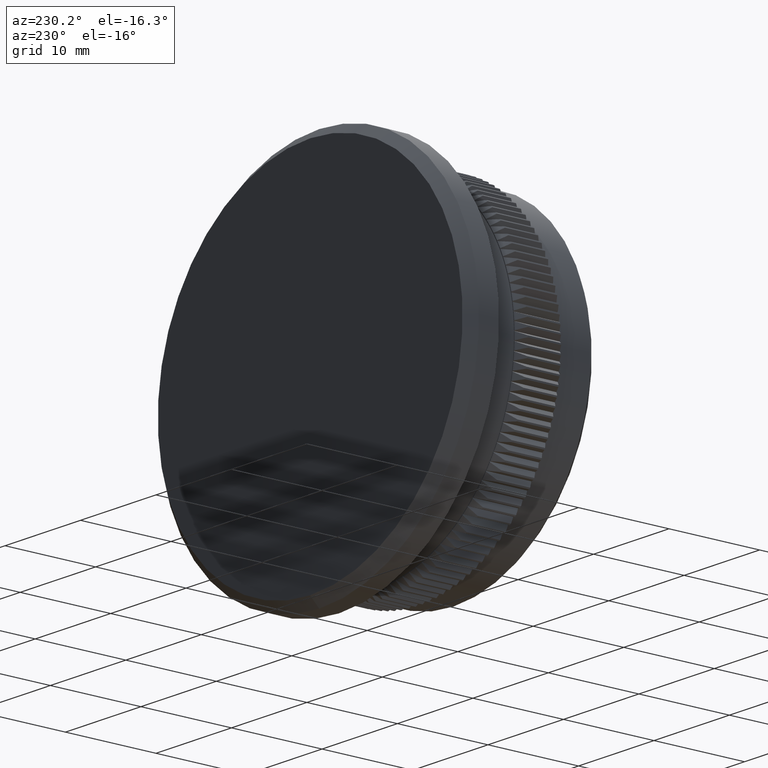
[diagram: clean part render]
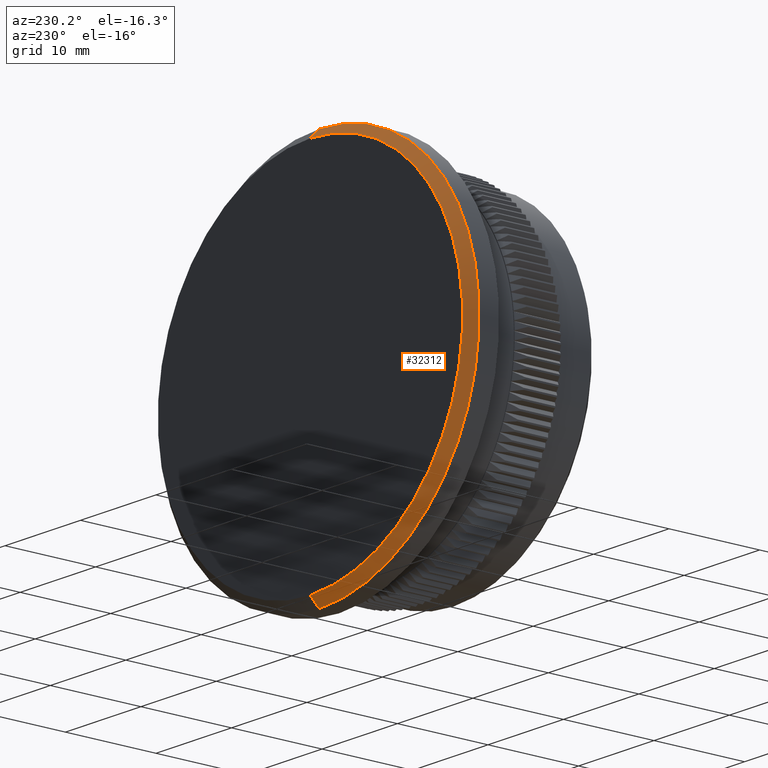
[diagram: same view with one face highlighted and labeled with its STEP entity id]
A machine part, auxiliary view. The second image highlights one B-rep face of the part: STEP entity #32312.
In plain terms, the highlighted conical surface has half-angle 45 deg.
Its self-contained STEP definition (entity closure, byte-faithful):
#227 = DIRECTION ( 'NONE',  ( 0.0000000000000000000, 0.0000000000000000000, -1.000000000000000000 ) ) ;
#365 = CARTESIAN_POINT ( 'NONE',  ( 0.0000000000000000000, 15.30000000000000400, 0.0000000000000000000 ) ) ;
#2000 = CARTESIAN_POINT ( 'NONE',  ( 0.0000000000000000000, 15.30000000000000400, -21.20000000000000300 ) ) ;
#3314 = EDGE_CURVE ( 'NONE', #15080, #12974, #34883, .T. ) ;
#6774 = CIRCLE ( 'NONE', #37833, 21.20000000000000300 ) ;
#7850 = CARTESIAN_POINT ( 'NONE',  ( 0.0000000000000000000, 15.30000000000000400, 0.0000000000000000000 ) ) ;
#8582 = CONICAL_SURFACE ( 'NONE', #42195, 21.20000000000000300, 0.7853981633974500600 ) ;
#9871 = CARTESIAN_POINT ( 'NONE',  ( 0.0000000000000000000, 15.30000000000000400, -21.20000000000000300 ) ) ;
#10496 = CARTESIAN_POINT ( 'NONE',  ( 2.535018874235021200E-015, 16.30000000000000100, 20.20000000000000300 ) ) ;
#10724 = FACE_OUTER_BOUND ( 'NONE', #17945, .T. ) ;
#11420 = ORIENTED_EDGE ( 'NONE', *, *, #23603, .F. ) ;
#12974 = VERTEX_POINT ( 'NONE', #38737 ) ;
#14075 = LINE ( 'NONE', #2000, #18854 ) ;
#14759 = VERTEX_POINT ( 'NONE', #36836 ) ;
#15080 = VERTEX_POINT ( 'NONE', #10496 ) ;
#16592 = CIRCLE ( 'NONE', #36285, 20.20000000000000300 ) ;
#16813 = VECTOR ( 'NONE', #30191, 1000.000000000000000 ) ;
#16867 = DIRECTION ( 'NONE',  ( 0.0000000000000000000, -0.7071067811865463500, -0.7071067811865487900 ) ) ;
#17945 = EDGE_LOOP ( 'NONE', ( #31857, #11420, #20429, #19790 ) ) ;
#18590 = DIRECTION ( 'NONE',  ( -0.0000000000000000000, -1.000000000000000000, -0.0000000000000000000 ) ) ;
#18854 = VECTOR ( 'NONE', #16867, 1000.000000000000000 ) ;
#19790 = ORIENTED_EDGE ( 'NONE', *, *, #27663, .F. ) ;
#20429 = ORIENTED_EDGE ( 'NONE', *, *, #29168, .T. ) ;
#23603 = EDGE_CURVE ( 'NONE', #14759, #15080, #16592, .T. ) ;
#24110 = DIRECTION ( 'NONE',  ( -0.0000000000000000000, -1.000000000000000000, -0.0000000000000000000 ) ) ;
#26761 = CARTESIAN_POINT ( 'NONE',  ( 2.596251214192389200E-015, 15.30000000000000400, 21.20000000000000300 ) ) ;
#27663 = EDGE_CURVE ( 'NONE', #12974, #39618, #6774, .T. ) ;
#28091 = DIRECTION ( 'NONE',  ( 0.0000000000000000000, 0.0000000000000000000, 1.000000000000000000 ) ) ;
#29168 = EDGE_CURVE ( 'NONE', #14759, #39618, #14075, .T. ) ;
#30191 = DIRECTION ( 'NONE',  ( 8.659560562354950100E-017, -0.7071067811865463500, 0.7071067811865487900 ) ) ;
#31857 = ORIENTED_EDGE ( 'NONE', *, *, #3314, .F. ) ;
#32312 = ADVANCED_FACE ( 'NONE', ( #10724 ), #8582, .T. ) ;
#34883 = LINE ( 'NONE', #26761, #16813 ) ;
#35412 = DIRECTION ( 'NONE',  ( 0.0000000000000000000, 1.000000000000000000, 0.0000000000000000000 ) ) ;
#36285 = AXIS2_PLACEMENT_3D ( 'NONE', #42693, #35412, #42548 ) ;
#36836 = CARTESIAN_POINT ( 'NONE',  ( 0.0000000000000000000, 16.30000000000000100, -20.20000000000000300 ) ) ;
#37833 = AXIS2_PLACEMENT_3D ( 'NONE', #7850, #18590, #28091 ) ;
#38737 = CARTESIAN_POINT ( 'NONE',  ( 2.596251214192389200E-015, 15.30000000000000400, 21.20000000000000300 ) ) ;
#39618 = VERTEX_POINT ( 'NONE', #9871 ) ;
#42195 = AXIS2_PLACEMENT_3D ( 'NONE', #365, #24110, #227 ) ;
#42548 = DIRECTION ( 'NONE',  ( 0.0000000000000000000, 0.0000000000000000000, 1.000000000000000000 ) ) ;
#42693 = CARTESIAN_POINT ( 'NONE',  ( 0.0000000000000000000, 16.30000000000000100, 0.0000000000000000000 ) ) ;